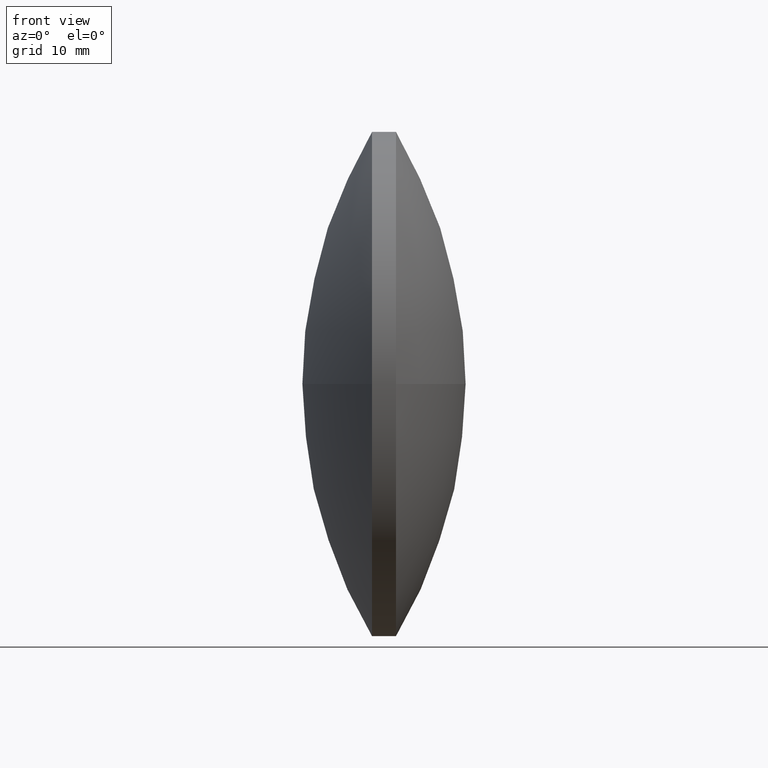
[diagram: clean part render]
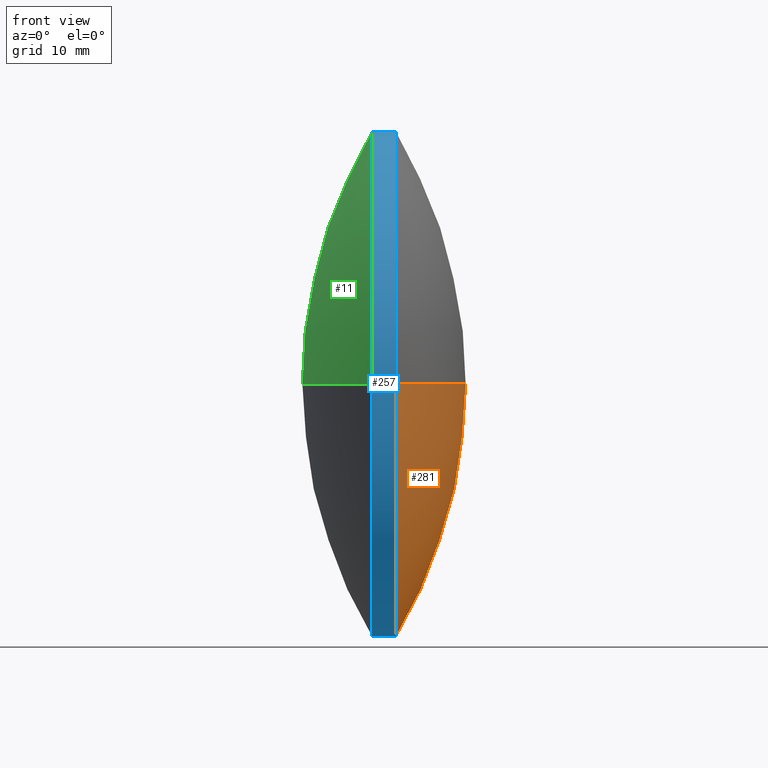
[diagram: same view with three faces highlighted in distinct colors, each labeled with its STEP entity id]
A machine part, front view with three faces highlighted in distinct colors.
Their STEP definitions:

[orange] entity #281 — the highlighted spherical surface has radius 61.3822 mm.
#3 = CARTESIAN_POINT ( 'NONE',  ( 215.9444092659714400, 120.5837547940985100, -31.50012600050371200 ) ) ;
#4 = DIRECTION ( 'NONE',  ( -1.000000000000000000, -0.0000000000000000000, -0.0000000000000000000 ) ) ;
#7 = ORIENTED_EDGE ( 'NONE', *, *, #71, .F. ) ;
#25 = DIRECTION ( 'NONE',  ( 0.0000000000000000000, 0.0000000000000000000, 1.000000000000000000 ) ) ;
#26 = ORIENTED_EDGE ( 'NONE', *, *, #61, .F. ) ;
#28 = DIRECTION ( 'NONE',  ( -0.0000000000000000000, 0.0000000000000000000, 1.000000000000000000 ) ) ;
#56 = FACE_OUTER_BOUND ( 'NONE', #280, .T. ) ;
#58 = CARTESIAN_POINT ( 'NONE',  ( 215.9444092659714400, 152.0838807946021800, 0.0000000000000000000 ) ) ;
#61 = EDGE_CURVE ( 'NONE', #207, #182, #276, .T. ) ;
#68 = ORIENTED_EDGE ( 'NONE', *, *, #99, .F. ) ;
#71 = EDGE_CURVE ( 'NONE', #182, #245, #181, .T. ) ;
#99 = EDGE_CURVE ( 'NONE', #157, #207, #177, .T. ) ;
#107 = AXIS2_PLACEMENT_3D ( 'NONE', #224, #28, #321 ) ;
#108 = DIRECTION ( 'NONE',  ( 0.0000000000000000000, 0.0000000000000000000, 1.000000000000000000 ) ) ;
#111 = CARTESIAN_POINT ( 'NONE',  ( 215.9444092659714400, 120.5837547940985100, 0.0000000000000000000 ) ) ;
#147 = CARTESIAN_POINT ( 'NONE',  ( 163.2611822268066500, 120.5837547940984100, 0.0000000000000000000 ) ) ;
#154 = AXIS2_PLACEMENT_3D ( 'NONE', #147, #327, #278 ) ;
#157 = VERTEX_POINT ( 'NONE', #306 ) ;
#163 = DIRECTION ( 'NONE',  ( -1.000000000000000000, -0.0000000000000000000, -0.0000000000000000000 ) ) ;
#174 = DIRECTION ( 'NONE',  ( 0.0000000000000000000, 1.000000000000000000, 0.0000000000000000000 ) ) ;
#177 = CIRCLE ( 'NONE', #107, 61.38224783524790200 ) ;
#181 = CIRCLE ( 'NONE', #255, 31.50012600050371200 ) ;
#182 = VERTEX_POINT ( 'NONE', #3 ) ;
#199 = ORIENTED_EDGE ( 'NONE', *, *, #277, .T. ) ;
#207 = VERTEX_POINT ( 'NONE', #58 ) ;
#224 = CARTESIAN_POINT ( 'NONE',  ( 163.2611822268066500, 120.5837547940984100, 0.0000000000000000000 ) ) ;
#237 = CARTESIAN_POINT ( 'NONE',  ( 215.9444092659714400, 89.08362879359474100, -3.857652847925513700E-015 ) ) ;
#243 = SPHERICAL_SURFACE ( 'NONE', #345, 61.38224783524788800 ) ;
#245 = VERTEX_POINT ( 'NONE', #237 ) ;
#255 = AXIS2_PLACEMENT_3D ( 'NONE', #297, #163, #25 ) ;
#276 = CIRCLE ( 'NONE', #330, 31.50012600050371200 ) ;
#277 = EDGE_CURVE ( 'NONE', #157, #245, #342, .T. ) ;
#278 = DIRECTION ( 'NONE',  ( 0.0000000000000000000, 1.000000000000000000, 1.224646799147352700E-016 ) ) ;
#280 = EDGE_LOOP ( 'NONE', ( #68, #199, #7, #26 ) ) ;
#281 = ADVANCED_FACE ( 'NONE', ( #56 ), #243, .T. ) ;
#297 = CARTESIAN_POINT ( 'NONE',  ( 215.9444092659714400, 120.5837547940985100, 0.0000000000000000000 ) ) ;
#305 = DIRECTION ( 'NONE',  ( -0.0000000000000000000, 0.0000000000000000000, -1.000000000000000000 ) ) ;
#306 = CARTESIAN_POINT ( 'NONE',  ( 224.6434300620545600, 120.5837547940984100, 0.0000000000000000000 ) ) ;
#312 = CARTESIAN_POINT ( 'NONE',  ( 163.2611822268066500, 120.5837547940984100, 0.0000000000000000000 ) ) ;
#321 = DIRECTION ( 'NONE',  ( 1.000000000000000000, 0.0000000000000000000, 0.0000000000000000000 ) ) ;
#327 = DIRECTION ( 'NONE',  ( 0.0000000000000000000, 1.224646799147353200E-016, -1.000000000000000000 ) ) ;
#330 = AXIS2_PLACEMENT_3D ( 'NONE', #111, #4, #108 ) ;
#342 = CIRCLE ( 'NONE', #154, 61.38224783524790200 ) ;
#345 = AXIS2_PLACEMENT_3D ( 'NONE', #312, #305, #174 ) ;

[blue] entity #257 — the highlighted cylindrical surface (partial cylindrical patch) has radius 31.5001 mm, axis along (-1, -0, -0).
#1 = VERTEX_POINT ( 'NONE', #78 ) ;
#3 = CARTESIAN_POINT ( 'NONE',  ( 215.9444092659714400, 120.5837547940985100, -31.50012600050371200 ) ) ;
#8 = DIRECTION ( 'NONE',  ( 0.0000000000000000000, 0.0000000000000000000, 1.000000000000000000 ) ) ;
#9 = CARTESIAN_POINT ( 'NONE',  ( 215.9444092659714400, 120.5837547940985100, 0.0000000000000000000 ) ) ;
#15 = CIRCLE ( 'NONE', #44, 31.50012600050371200 ) ;
#25 = DIRECTION ( 'NONE',  ( 0.0000000000000000000, 0.0000000000000000000, 1.000000000000000000 ) ) ;
#27 = CARTESIAN_POINT ( 'NONE',  ( 212.9444092659714400, 89.08362879359475500, -3.857652847925514500E-015 ) ) ;
#34 = LINE ( 'NONE', #75, #168 ) ;
#39 = VECTOR ( 'NONE', #198, 1000.000000000000000 ) ;
#44 = AXIS2_PLACEMENT_3D ( 'NONE', #9, #253, #260 ) ;
#45 = CIRCLE ( 'NONE', #119, 31.50012600050371200 ) ;
#48 = VERTEX_POINT ( 'NONE', #27 ) ;
#51 = FACE_OUTER_BOUND ( 'NONE', #334, .T. ) ;
#52 = DIRECTION ( 'NONE',  ( -1.000000000000000000, -0.0000000000000000000, -0.0000000000000000000 ) ) ;
#71 = EDGE_CURVE ( 'NONE', #182, #245, #181, .T. ) ;
#75 = CARTESIAN_POINT ( 'NONE',  ( 199.0063995931125200, 120.5837547940985100, 31.50012600050371200 ) ) ;
#77 = VERTEX_POINT ( 'NONE', #104 ) ;
#78 = CARTESIAN_POINT ( 'NONE',  ( 215.9444092659714400, 120.5837547940985100, 31.50012600050371200 ) ) ;
#81 = ORIENTED_EDGE ( 'NONE', *, *, #244, .F. ) ;
#83 = CARTESIAN_POINT ( 'NONE',  ( 212.9444092659714400, 120.5837547940985100, 0.0000000000000000000 ) ) ;
#85 = DIRECTION ( 'NONE',  ( 0.0000000000000000000, 0.0000000000000000000, 1.000000000000000000 ) ) ;
#88 = EDGE_CURVE ( 'NONE', #1, #77, #34, .T. ) ;
#103 = CYLINDRICAL_SURFACE ( 'NONE', #242, 31.50012600050371200 ) ;
#104 = CARTESIAN_POINT ( 'NONE',  ( 212.9444092659714400, 120.5837547940985100, 31.50012600050371200 ) ) ;
#106 = ORIENTED_EDGE ( 'NONE', *, *, #188, .T. ) ;
#110 = LINE ( 'NONE', #252, #39 ) ;
#119 = AXIS2_PLACEMENT_3D ( 'NONE', #83, #230, #85 ) ;
#124 = VERTEX_POINT ( 'NONE', #220 ) ;
#152 = CARTESIAN_POINT ( 'NONE',  ( 212.9444092659714400, 120.5837547940985100, 0.0000000000000000000 ) ) ;
#163 = DIRECTION ( 'NONE',  ( -1.000000000000000000, -0.0000000000000000000, -0.0000000000000000000 ) ) ;
#168 = VECTOR ( 'NONE', #52, 1000.000000000000000 ) ;
#171 = CARTESIAN_POINT ( 'NONE',  ( 199.0063995931125200, 120.5837547940985100, 0.0000000000000000000 ) ) ;
#181 = CIRCLE ( 'NONE', #255, 31.50012600050371200 ) ;
#182 = VERTEX_POINT ( 'NONE', #3 ) ;
#188 = EDGE_CURVE ( 'NONE', #245, #1, #15, .T. ) ;
#198 = DIRECTION ( 'NONE',  ( -1.000000000000000000, -0.0000000000000000000, -0.0000000000000000000 ) ) ;
#200 = EDGE_CURVE ( 'NONE', #124, #48, #45, .T. ) ;
#220 = CARTESIAN_POINT ( 'NONE',  ( 212.9444092659714400, 120.5837547940985100, -31.50012600050371200 ) ) ;
#227 = ORIENTED_EDGE ( 'NONE', *, *, #88, .T. ) ;
#228 = AXIS2_PLACEMENT_3D ( 'NONE', #152, #286, #238 ) ;
#229 = DIRECTION ( 'NONE',  ( -1.000000000000000000, -0.0000000000000000000, -0.0000000000000000000 ) ) ;
#230 = DIRECTION ( 'NONE',  ( -1.000000000000000000, -0.0000000000000000000, -0.0000000000000000000 ) ) ;
#237 = CARTESIAN_POINT ( 'NONE',  ( 215.9444092659714400, 89.08362879359474100, -3.857652847925513700E-015 ) ) ;
#238 = DIRECTION ( 'NONE',  ( 0.0000000000000000000, 0.0000000000000000000, 1.000000000000000000 ) ) ;
#242 = AXIS2_PLACEMENT_3D ( 'NONE', #171, #229, #8 ) ;
#244 = EDGE_CURVE ( 'NONE', #182, #124, #110, .T. ) ;
#245 = VERTEX_POINT ( 'NONE', #237 ) ;
#252 = CARTESIAN_POINT ( 'NONE',  ( 199.0063995931125200, 120.5837547940985100, -31.50012600050371200 ) ) ;
#253 = DIRECTION ( 'NONE',  ( -1.000000000000000000, -0.0000000000000000000, -0.0000000000000000000 ) ) ;
#255 = AXIS2_PLACEMENT_3D ( 'NONE', #297, #163, #25 ) ;
#257 = ADVANCED_FACE ( 'NONE', ( #51 ), #103, .T. ) ;
#260 = DIRECTION ( 'NONE',  ( 0.0000000000000000000, 0.0000000000000000000, 1.000000000000000000 ) ) ;
#265 = CIRCLE ( 'NONE', #228, 31.50012600050371200 ) ;
#286 = DIRECTION ( 'NONE',  ( -1.000000000000000000, -0.0000000000000000000, -0.0000000000000000000 ) ) ;
#297 = CARTESIAN_POINT ( 'NONE',  ( 215.9444092659714400, 120.5837547940985100, 0.0000000000000000000 ) ) ;
#298 = EDGE_CURVE ( 'NONE', #48, #77, #265, .T. ) ;
#302 = ORIENTED_EDGE ( 'NONE', *, *, #200, .F. ) ;
#308 = ORIENTED_EDGE ( 'NONE', *, *, #298, .F. ) ;
#334 = EDGE_LOOP ( 'NONE', ( #81, #343, #106, #227, #308, #302 ) ) ;
#343 = ORIENTED_EDGE ( 'NONE', *, *, #71, .T. ) ;

[green] entity #11 — the highlighted spherical surface has radius 61.3822 mm.
#11 = ADVANCED_FACE ( 'NONE', ( #165 ), #216, .T. ) ;
#16 = VERTEX_POINT ( 'NONE', #141 ) ;
#27 = CARTESIAN_POINT ( 'NONE',  ( 212.9444092659714400, 89.08362879359475500, -3.857652847925514500E-015 ) ) ;
#30 = DIRECTION ( 'NONE',  ( -0.0000000000000000000, 0.0000000000000000000, -1.000000000000000000 ) ) ;
#32 = ORIENTED_EDGE ( 'NONE', *, *, #222, .T. ) ;
#33 = CARTESIAN_POINT ( 'NONE',  ( 212.9444092659714400, 120.5837547940985100, 0.0000000000000000000 ) ) ;
#48 = VERTEX_POINT ( 'NONE', #27 ) ;
#54 = AXIS2_PLACEMENT_3D ( 'NONE', #33, #172, #204 ) ;
#64 = CARTESIAN_POINT ( 'NONE',  ( 265.6276363051364300, 120.5837547940984400, 0.0000000000000000000 ) ) ;
#77 = VERTEX_POINT ( 'NONE', #104 ) ;
#92 = ORIENTED_EDGE ( 'NONE', *, *, #266, .T. ) ;
#93 = AXIS2_PLACEMENT_3D ( 'NONE', #137, #30, #246 ) ;
#96 = ORIENTED_EDGE ( 'NONE', *, *, #298, .T. ) ;
#104 = CARTESIAN_POINT ( 'NONE',  ( 212.9444092659714400, 120.5837547940985100, 31.50012600050371200 ) ) ;
#112 = CARTESIAN_POINT ( 'NONE',  ( 212.9444092659714400, 152.0838807946021800, 0.0000000000000000000 ) ) ;
#116 = CARTESIAN_POINT ( 'NONE',  ( 265.6276363051364300, 120.5837547940984400, 0.0000000000000000000 ) ) ;
#123 = CIRCLE ( 'NONE', #54, 31.50012600050371200 ) ;
#127 = AXIS2_PLACEMENT_3D ( 'NONE', #64, #323, #146 ) ;
#131 = AXIS2_PLACEMENT_3D ( 'NONE', #116, #326, #284 ) ;
#137 = CARTESIAN_POINT ( 'NONE',  ( 265.6276363051364300, 120.5837547940984400, 0.0000000000000000000 ) ) ;
#141 = CARTESIAN_POINT ( 'NONE',  ( 204.2453884698883800, 120.5837547940984400, 0.0000000000000000000 ) ) ;
#146 = DIRECTION ( 'NONE',  ( 0.0000000000000000000, 1.000000000000000000, 1.224646799147353500E-016 ) ) ;
#152 = CARTESIAN_POINT ( 'NONE',  ( 212.9444092659714400, 120.5837547940985100, 0.0000000000000000000 ) ) ;
#165 = FACE_OUTER_BOUND ( 'NONE', #285, .T. ) ;
#172 = DIRECTION ( 'NONE',  ( -1.000000000000000000, -0.0000000000000000000, -0.0000000000000000000 ) ) ;
#190 = ORIENTED_EDGE ( 'NONE', *, *, #250, .F. ) ;
#204 = DIRECTION ( 'NONE',  ( 0.0000000000000000000, 0.0000000000000000000, 1.000000000000000000 ) ) ;
#216 = SPHERICAL_SURFACE ( 'NONE', #93, 61.38224783524805200 ) ;
#222 = EDGE_CURVE ( 'NONE', #77, #290, #123, .T. ) ;
#228 = AXIS2_PLACEMENT_3D ( 'NONE', #152, #286, #238 ) ;
#238 = DIRECTION ( 'NONE',  ( 0.0000000000000000000, 0.0000000000000000000, 1.000000000000000000 ) ) ;
#246 = DIRECTION ( 'NONE',  ( 0.0000000000000000000, 1.000000000000000000, 0.0000000000000000000 ) ) ;
#250 = EDGE_CURVE ( 'NONE', #48, #16, #333, .T. ) ;
#262 = CIRCLE ( 'NONE', #131, 61.38224783524803700 ) ;
#265 = CIRCLE ( 'NONE', #228, 31.50012600050371200 ) ;
#266 = EDGE_CURVE ( 'NONE', #290, #16, #262, .T. ) ;
#284 = DIRECTION ( 'NONE',  ( 1.000000000000000000, 0.0000000000000000000, 0.0000000000000000000 ) ) ;
#285 = EDGE_LOOP ( 'NONE', ( #190, #96, #32, #92 ) ) ;
#286 = DIRECTION ( 'NONE',  ( -1.000000000000000000, -0.0000000000000000000, -0.0000000000000000000 ) ) ;
#290 = VERTEX_POINT ( 'NONE', #112 ) ;
#298 = EDGE_CURVE ( 'NONE', #48, #77, #265, .T. ) ;
#323 = DIRECTION ( 'NONE',  ( 0.0000000000000000000, 1.224646799147353200E-016, -1.000000000000000000 ) ) ;
#326 = DIRECTION ( 'NONE',  ( -0.0000000000000000000, 0.0000000000000000000, 1.000000000000000000 ) ) ;
#333 = CIRCLE ( 'NONE', #127, 61.38224783524803700 ) ;